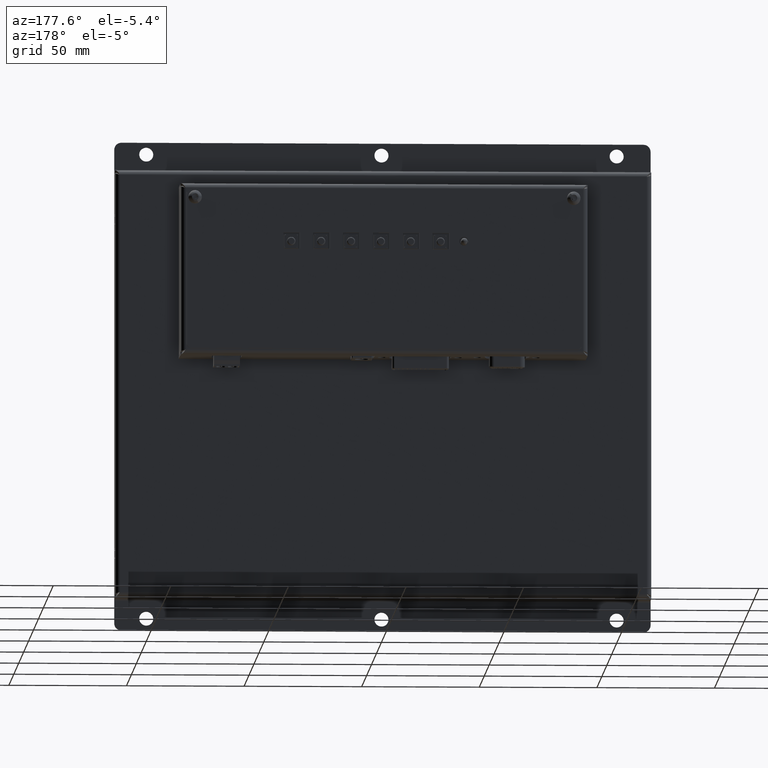
[diagram: clean part render]
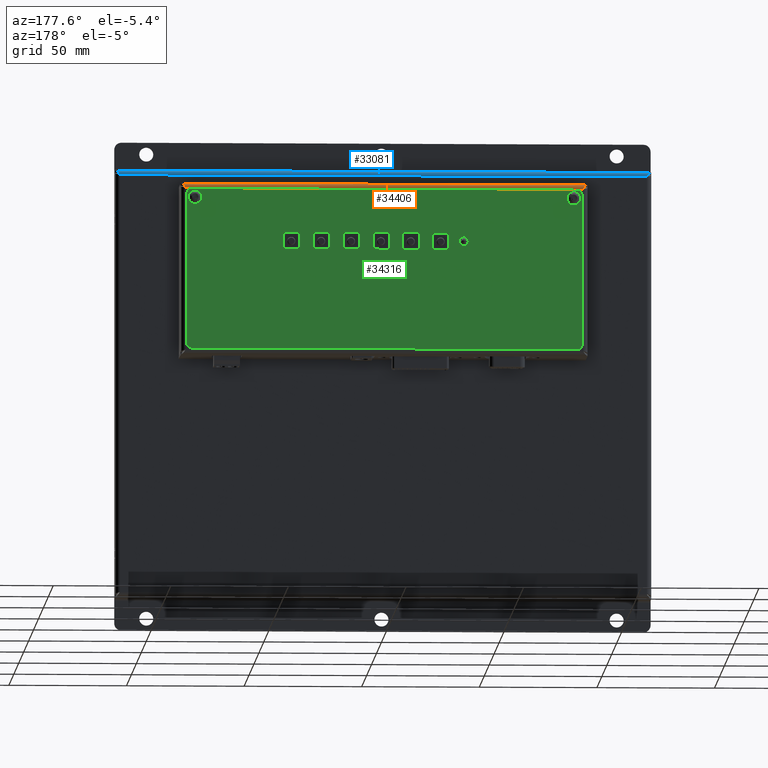
[diagram: same view with three faces highlighted in distinct colors, each labeled with its STEP entity id]
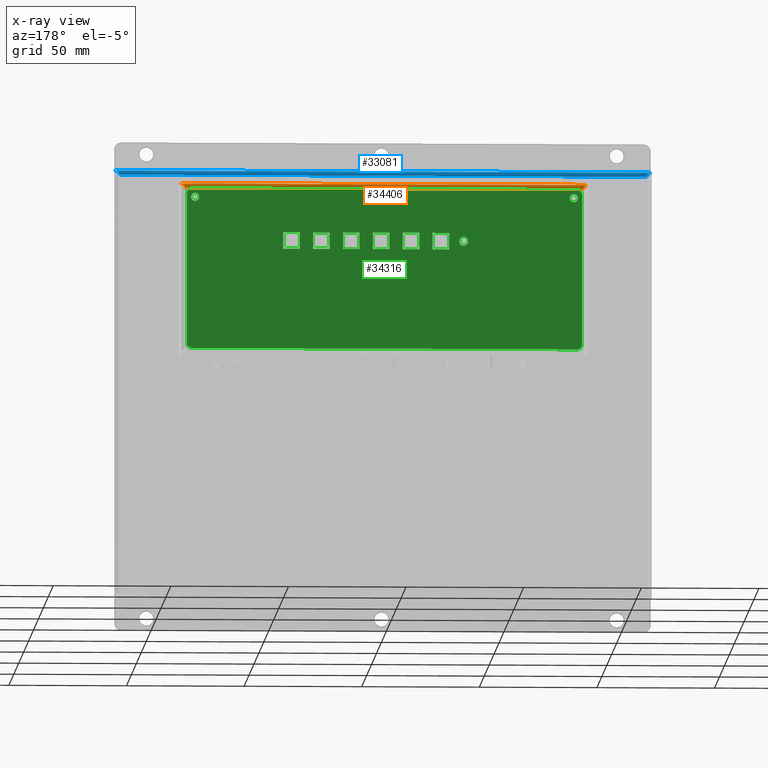
[diagram: x-ray of the same camera — body ghosted, the three highlighted faces saturated]
A machine part, auxiliary view with three faces highlighted in distinct colors.
The next image is the same camera in x-ray (body ghosted, the three faces saturated) — at least one of them is partly hidden behind the body in this view.
Their STEP definitions:

[orange] entity #34406 — the highlighted cylindrical surface (edge-blend (fillet) strip) has radius 2 mm, axis along (1, 0, 0).
#582=B_SPLINE_CURVE_WITH_KNOTS('',3,(#57694,#57695,#57696,#57697,#57698,
#57699,#57700),.UNSPECIFIED.,.F.,.F.,(4,3,4),(-0.999999999999995,-0.571428571428571,
0.),.UNSPECIFIED.);
#599=B_SPLINE_CURVE_WITH_KNOTS('',3,(#58089,#58090,#58091,#58092,#58093,
#58094,#58095),.UNSPECIFIED.,.F.,.F.,(4,3,4),(-1.,-0.57142857142857,0.),
 .UNSPECIFIED.);
#1060=CYLINDRICAL_SURFACE('',#37478,2.);
#4252=FACE_OUTER_BOUND('',#6338,.T.);
#6338=EDGE_LOOP('',(#30309,#30310,#30311,#30312));
#9542=LINE('',#57281,#12763);
#9652=LINE('',#57958,#12873);
#12763=VECTOR('',#45249,10.);
#12873=VECTOR('',#45599,10.);
#16978=VERTEX_POINT('',#57279);
#16979=VERTEX_POINT('',#57280);
#17095=VERTEX_POINT('',#57669);
#17113=VERTEX_POINT('',#57957);
#21397=EDGE_CURVE('',#16978,#16979,#9542,.T.);
#21561=EDGE_CURVE('',#17095,#16979,#582,.T.);
#21589=EDGE_CURVE('',#17095,#17113,#9652,.T.);
#21611=EDGE_CURVE('',#17113,#16978,#599,.T.);
#30309=ORIENTED_EDGE('',*,*,#21589,.F.);
#30310=ORIENTED_EDGE('',*,*,#21561,.T.);
#30311=ORIENTED_EDGE('',*,*,#21397,.F.);
#30312=ORIENTED_EDGE('',*,*,#21611,.F.);
#34406=ADVANCED_FACE('',(#4252),#1060,.T.);
#37478=AXIS2_PLACEMENT_3D('',#58224,#45656,#45657);
#45249=DIRECTION('',(-1.,-2.62774680384652E-16,0.));
#45599=DIRECTION('',(1.,2.86392855063793E-16,4.90481268965552E-32));
#45656=DIRECTION('center_axis',(-1.,-2.59701292309978E-16,0.));
#45657=DIRECTION('ref_axis',(0.,0.,1.));
#57279=CARTESIAN_POINT('',(84.5,34.5,1.38777878078145E-16));
#57280=CARTESIAN_POINT('',(-84.5,34.5,1.38777878078145E-16));
#57281=CARTESIAN_POINT('',(42.25,34.5,0.));
#57669=CARTESIAN_POINT('',(-86.5,36.5,-2.));
#57694=CARTESIAN_POINT('Ctrl Pts',(-86.5,36.5,-1.99999999999997));
#57695=CARTESIAN_POINT('Ctrl Pts',(-86.2142857142844,36.5,-1.55120104948725));
#57696=CARTESIAN_POINT('Ctrl Pts',(-85.9285714285714,36.3433273103291,-1.10157833651869));
#57697=CARTESIAN_POINT('Ctrl Pts',(-85.6428571428577,36.0635085058079,-0.752432041903078));
#57698=CARTESIAN_POINT('Ctrl Pts',(-85.2619047619061,35.6904167664462,-0.286903649082256));
#57699=CARTESIAN_POINT('Ctrl Pts',(-84.8809523809533,35.098398600684,-5.48368807373216E-15));
#57700=CARTESIAN_POINT('Ctrl Pts',(-84.4999999999999,34.5,-2.63677968348475E-15));
#57957=CARTESIAN_POINT('',(86.5,36.5,-2.));
#57958=CARTESIAN_POINT('',(-3.52240423817298E-15,36.5,-1.99999999999999));
#58089=CARTESIAN_POINT('Ctrl Pts',(86.5,36.5,-2.));
#58090=CARTESIAN_POINT('Ctrl Pts',(86.2142857142865,36.5,-1.55120104948719));
#58091=CARTESIAN_POINT('Ctrl Pts',(85.9285714285719,36.3433273103291,-1.10157833651865));
#58092=CARTESIAN_POINT('Ctrl Pts',(85.6428571428569,36.0635085058079,-0.752432041903043));
#58093=CARTESIAN_POINT('Ctrl Pts',(85.2619047619036,35.6904167664462,-0.286903649082242));
#58094=CARTESIAN_POINT('Ctrl Pts',(84.8809523809496,35.0983986006839,-8.64056645784558E-15));
#58095=CARTESIAN_POINT('Ctrl Pts',(84.5000000000001,34.5,-2.22044604925038E-15));
#58224=CARTESIAN_POINT('Origin',(-1.77635683940025E-14,34.5,-2.));

[blue] entity #33081 — the highlighted cylindrical surface (edge-blend (fillet) strip) has radius 2 mm, axis along (1, 0, 0).
#374=B_SPLINE_CURVE_WITH_KNOTS('',3,(#48739,#48740,#48741,#48742,#48743,
#48744,#48745),.UNSPECIFIED.,.F.,.F.,(4,3,4),(-1.,-0.571428571428571,0.),
 .UNSPECIFIED.);
#376=B_SPLINE_CURVE_WITH_KNOTS('',3,(#48825,#48826,#48827,#48828,#48829,
#48830,#48831),.UNSPECIFIED.,.F.,.F.,(4,3,4),(-1.,-0.571428571428568,0.),
 .UNSPECIFIED.);
#752=CYLINDRICAL_SURFACE('',#35533,2.);
#2927=FACE_OUTER_BOUND('',#4836,.T.);
#4836=EDGE_LOOP('',(#23299,#23300,#23301,#23302));
#6947=LINE('',#47934,#10168);
#7061=LINE('',#48322,#10282);
#10168=VECTOR('',#38682,10.);
#10282=VECTOR('',#39110,10.);
#14623=VERTEX_POINT('',#47932);
#14624=VERTEX_POINT('',#47933);
#14740=VERTEX_POINT('',#48319);
#14741=VERTEX_POINT('',#48321);
#17835=EDGE_CURVE('',#14623,#14624,#6947,.T.);
#18028=EDGE_CURVE('',#14740,#14741,#7061,.T.);
#18076=EDGE_CURVE('',#14741,#14623,#374,.T.);
#18084=EDGE_CURVE('',#14740,#14624,#376,.T.);
#23299=ORIENTED_EDGE('',*,*,#18028,.F.);
#23300=ORIENTED_EDGE('',*,*,#18084,.T.);
#23301=ORIENTED_EDGE('',*,*,#17835,.F.);
#23302=ORIENTED_EDGE('',*,*,#18076,.F.);
#33081=ADVANCED_FACE('',(#2927),#752,.T.);
#35533=AXIS2_PLACEMENT_3D('',#48858,#39182,#39183);
#38682=DIRECTION('',(-1.,-1.58603289232165E-16,0.));
#39110=DIRECTION('',(1.,1.56511390164708E-16,6.07145166111088E-33));
#39182=DIRECTION('center_axis',(-1.,-1.57199720300907E-16,0.));
#39183=DIRECTION('ref_axis',(0.,0.,1.));
#47932=CARTESIAN_POINT('',(112.,89.,1.));
#47933=CARTESIAN_POINT('',(-112.,89.,1.));
#47934=CARTESIAN_POINT('',(56.,89.,1.));
#48319=CARTESIAN_POINT('',(-114.,91.,-1.00000000000003));
#48321=CARTESIAN_POINT('',(114.,91.,-0.999999999999992));
#48322=CARTESIAN_POINT('',(1.66115145573123E-14,91.,-1.00000000000001));
#48739=CARTESIAN_POINT('Ctrl Pts',(114.,91.,-0.999999999999991));
#48740=CARTESIAN_POINT('Ctrl Pts',(113.714285714287,91.,-0.55120104948688));
#48741=CARTESIAN_POINT('Ctrl Pts',(113.428571428573,90.8432969450831,-0.101614789424755));
#48742=CARTESIAN_POINT('Ctrl Pts',(113.142857142859,90.5634738026695,0.247526297632729));
#48743=CARTESIAN_POINT('Ctrl Pts',(112.761904761907,90.1903762794514,0.713047747042709));
#48744=CARTESIAN_POINT('Ctrl Pts',(112.380952380954,89.5983986006837,0.999999999999994));
#48745=CARTESIAN_POINT('Ctrl Pts',(112.,89.0000000000001,0.999999999999998));
#48825=CARTESIAN_POINT('Ctrl Pts',(-114.,91.,-1.00000000000003));
#48826=CARTESIAN_POINT('Ctrl Pts',(-113.714285714283,91.,-0.551201049487266));
#48827=CARTESIAN_POINT('Ctrl Pts',(-113.42857142857,90.8432969450831,-0.10161478942499));
#48828=CARTESIAN_POINT('Ctrl Pts',(-113.142857142857,90.5634738026695,0.247526297632587));
#48829=CARTESIAN_POINT('Ctrl Pts',(-112.761904761906,90.1903762794514,0.713047747042682));
#48830=CARTESIAN_POINT('Ctrl Pts',(-112.380952380954,89.5983986006836,0.999999999999983));
#48831=CARTESIAN_POINT('Ctrl Pts',(-112.,89.,0.999999999999998));
#48858=CARTESIAN_POINT('Origin',(1.77635683940025E-14,89.,-1.));

[green] entity #34316 — the highlighted planar face has unit normal (0, 1, -0).
#2637=FACE_BOUND('',#6214,.T.);
#2638=FACE_BOUND('',#6215,.T.);
#2639=FACE_BOUND('',#6216,.T.);
#2640=FACE_BOUND('',#6217,.T.);
#2641=FACE_BOUND('',#6218,.T.);
#2642=FACE_BOUND('',#6219,.T.);
#2643=FACE_BOUND('',#6220,.T.);
#2644=FACE_BOUND('',#6221,.T.);
#2645=FACE_BOUND('',#6222,.T.);
#4162=FACE_OUTER_BOUND('',#6213,.T.);
#6213=EDGE_LOOP('',(#29799,#29800,#29801,#29802,#29803,#29804,#29805,#29806));
#6214=EDGE_LOOP('',(#29807,#29808));
#6215=EDGE_LOOP('',(#29809,#29810));
#6216=EDGE_LOOP('',(#29811,#29812,#29813,#29814));
#6217=EDGE_LOOP('',(#29815,#29816,#29817,#29818));
#6218=EDGE_LOOP('',(#29819,#29820,#29821,#29822));
#6219=EDGE_LOOP('',(#29823,#29824,#29825,#29826));
#6220=EDGE_LOOP('',(#29827,#29828,#29829,#29830));
#6221=EDGE_LOOP('',(#29831,#29832,#29833,#29834));
#6222=EDGE_LOOP('',(#29835));
#9441=LINE('',#57031,#12662);
#9445=LINE('',#57039,#12666);
#9448=LINE('',#57045,#12669);
#9451=LINE('',#57050,#12672);
#9453=LINE('',#57055,#12674);
#9457=LINE('',#57063,#12678);
#9460=LINE('',#57069,#12681);
#9463=LINE('',#57074,#12684);
#9465=LINE('',#57079,#12686);
#9469=LINE('',#57087,#12690);
#9472=LINE('',#57093,#12693);
#9475=LINE('',#57098,#12696);
#9477=LINE('',#57103,#12698);
#9481=LINE('',#57111,#12702);
#9484=LINE('',#57117,#12705);
#9487=LINE('',#57122,#12708);
#9489=LINE('',#57127,#12710);
#9493=LINE('',#57135,#12714);
#9496=LINE('',#57141,#12717);
#9499=LINE('',#57146,#12720);
#9501=LINE('',#57151,#12722);
#9505=LINE('',#57159,#12726);
#9508=LINE('',#57165,#12729);
#9511=LINE('',#57170,#12732);
#9514=LINE('',#57181,#12735);
#9518=LINE('',#57190,#12739);
#9521=LINE('',#57198,#12742);
#9524=LINE('',#57206,#12745);
#12662=VECTOR('',#45014,10.);
#12666=VECTOR('',#45020,10.);
#12669=VECTOR('',#45025,10.);
#12672=VECTOR('',#45030,10.);
#12674=VECTOR('',#45034,10.);
#12678=VECTOR('',#45040,10.);
#12681=VECTOR('',#45045,10.);
#12684=VECTOR('',#45050,10.);
#12686=VECTOR('',#45054,10.);
#12690=VECTOR('',#45060,10.);
#12693=VECTOR('',#45065,10.);
#12696=VECTOR('',#45070,10.);
#12698=VECTOR('',#45074,10.);
#12702=VECTOR('',#45080,10.);
#12705=VECTOR('',#45085,10.);
#12708=VECTOR('',#45090,10.);
#12710=VECTOR('',#45094,10.);
#12714=VECTOR('',#45100,10.);
#12717=VECTOR('',#45105,10.);
#12720=VECTOR('',#45110,10.);
#12722=VECTOR('',#45114,10.);
#12726=VECTOR('',#45120,10.);
#12729=VECTOR('',#45125,10.);
#12732=VECTOR('',#45130,10.);
#12735=VECTOR('',#45141,10.);
#12739=VECTOR('',#45151,10.);
#12742=VECTOR('',#45160,10.);
#12745=VECTOR('',#45169,10.);
#13971=CIRCLE('',#37258,1.7);
#13972=CIRCLE('',#37259,1.7);
#13975=CIRCLE('',#37263,1.7);
#13976=CIRCLE('',#37264,1.7);
#13988=CIRCLE('',#37302,1.9);
#13989=CIRCLE('',#37305,2.);
#13990=CIRCLE('',#37308,2.);
#13991=CIRCLE('',#37311,2.);
#13992=CIRCLE('',#37314,2.);
#16872=VERTEX_POINT('',#56976);
#16873=VERTEX_POINT('',#56977);
#16876=VERTEX_POINT('',#56986);
#16877=VERTEX_POINT('',#56987);
#16896=VERTEX_POINT('',#57029);
#16897=VERTEX_POINT('',#57030);
#16900=VERTEX_POINT('',#57038);
#16902=VERTEX_POINT('',#57044);
#16904=VERTEX_POINT('',#57053);
#16905=VERTEX_POINT('',#57054);
#16908=VERTEX_POINT('',#57062);
#16910=VERTEX_POINT('',#57068);
#16912=VERTEX_POINT('',#57077);
#16913=VERTEX_POINT('',#57078);
#16916=VERTEX_POINT('',#57086);
#16918=VERTEX_POINT('',#57092);
#16920=VERTEX_POINT('',#57101);
#16921=VERTEX_POINT('',#57102);
#16924=VERTEX_POINT('',#57110);
#16926=VERTEX_POINT('',#57116);
#16928=VERTEX_POINT('',#57125);
#16929=VERTEX_POINT('',#57126);
#16932=VERTEX_POINT('',#57134);
#16934=VERTEX_POINT('',#57140);
#16936=VERTEX_POINT('',#57149);
#16937=VERTEX_POINT('',#57150);
#16940=VERTEX_POINT('',#57158);
#16942=VERTEX_POINT('',#57164);
#16945=VERTEX_POINT('',#57175);
#16946=VERTEX_POINT('',#57179);
#16947=VERTEX_POINT('',#57180);
#16948=VERTEX_POINT('',#57185);
#16949=VERTEX_POINT('',#57189);
#16950=VERTEX_POINT('',#57193);
#16951=VERTEX_POINT('',#57197);
#16952=VERTEX_POINT('',#57201);
#16953=VERTEX_POINT('',#57205);
#21248=EDGE_CURVE('',#16872,#16873,#13971,.T.);
#21249=EDGE_CURVE('',#16873,#16872,#13972,.T.);
#21253=EDGE_CURVE('',#16876,#16877,#13975,.T.);
#21254=EDGE_CURVE('',#16877,#16876,#13976,.T.);
#21274=EDGE_CURVE('',#16896,#16897,#9441,.T.);
#21278=EDGE_CURVE('',#16897,#16900,#9445,.T.);
#21281=EDGE_CURVE('',#16900,#16902,#9448,.T.);
#21284=EDGE_CURVE('',#16902,#16896,#9451,.T.);
#21286=EDGE_CURVE('',#16904,#16905,#9453,.T.);
#21290=EDGE_CURVE('',#16905,#16908,#9457,.T.);
#21293=EDGE_CURVE('',#16908,#16910,#9460,.T.);
#21296=EDGE_CURVE('',#16910,#16904,#9463,.T.);
#21298=EDGE_CURVE('',#16912,#16913,#9465,.T.);
#21302=EDGE_CURVE('',#16913,#16916,#9469,.T.);
#21305=EDGE_CURVE('',#16916,#16918,#9472,.T.);
#21308=EDGE_CURVE('',#16918,#16912,#9475,.T.);
#21310=EDGE_CURVE('',#16920,#16921,#9477,.T.);
#21314=EDGE_CURVE('',#16921,#16924,#9481,.T.);
#21317=EDGE_CURVE('',#16924,#16926,#9484,.T.);
#21320=EDGE_CURVE('',#16926,#16920,#9487,.T.);
#21322=EDGE_CURVE('',#16928,#16929,#9489,.T.);
#21326=EDGE_CURVE('',#16929,#16932,#9493,.T.);
#21329=EDGE_CURVE('',#16932,#16934,#9496,.T.);
#21332=EDGE_CURVE('',#16934,#16928,#9499,.T.);
#21334=EDGE_CURVE('',#16936,#16937,#9501,.T.);
#21338=EDGE_CURVE('',#16937,#16940,#9505,.T.);
#21341=EDGE_CURVE('',#16940,#16942,#9508,.T.);
#21344=EDGE_CURVE('',#16942,#16936,#9511,.T.);
#21348=EDGE_CURVE('',#16945,#16945,#13988,.T.);
#21349=EDGE_CURVE('',#16946,#16947,#9514,.T.);
#21352=EDGE_CURVE('',#16947,#16948,#13989,.T.);
#21354=EDGE_CURVE('',#16948,#16949,#9518,.T.);
#21356=EDGE_CURVE('',#16949,#16950,#13990,.T.);
#21358=EDGE_CURVE('',#16950,#16951,#9521,.T.);
#21360=EDGE_CURVE('',#16951,#16952,#13991,.T.);
#21362=EDGE_CURVE('',#16952,#16953,#9524,.T.);
#21364=EDGE_CURVE('',#16953,#16946,#13992,.T.);
#29799=ORIENTED_EDGE('',*,*,#21349,.F.);
#29800=ORIENTED_EDGE('',*,*,#21364,.F.);
#29801=ORIENTED_EDGE('',*,*,#21362,.F.);
#29802=ORIENTED_EDGE('',*,*,#21360,.F.);
#29803=ORIENTED_EDGE('',*,*,#21358,.F.);
#29804=ORIENTED_EDGE('',*,*,#21356,.F.);
#29805=ORIENTED_EDGE('',*,*,#21354,.F.);
#29806=ORIENTED_EDGE('',*,*,#21352,.F.);
#29807=ORIENTED_EDGE('',*,*,#21248,.T.);
#29808=ORIENTED_EDGE('',*,*,#21249,.T.);
#29809=ORIENTED_EDGE('',*,*,#21253,.T.);
#29810=ORIENTED_EDGE('',*,*,#21254,.T.);
#29811=ORIENTED_EDGE('',*,*,#21274,.T.);
#29812=ORIENTED_EDGE('',*,*,#21278,.T.);
#29813=ORIENTED_EDGE('',*,*,#21281,.T.);
#29814=ORIENTED_EDGE('',*,*,#21284,.T.);
#29815=ORIENTED_EDGE('',*,*,#21286,.T.);
#29816=ORIENTED_EDGE('',*,*,#21290,.T.);
#29817=ORIENTED_EDGE('',*,*,#21293,.T.);
#29818=ORIENTED_EDGE('',*,*,#21296,.T.);
#29819=ORIENTED_EDGE('',*,*,#21298,.T.);
#29820=ORIENTED_EDGE('',*,*,#21302,.T.);
#29821=ORIENTED_EDGE('',*,*,#21305,.T.);
#29822=ORIENTED_EDGE('',*,*,#21308,.T.);
#29823=ORIENTED_EDGE('',*,*,#21310,.T.);
#29824=ORIENTED_EDGE('',*,*,#21314,.T.);
#29825=ORIENTED_EDGE('',*,*,#21317,.T.);
#29826=ORIENTED_EDGE('',*,*,#21320,.T.);
#29827=ORIENTED_EDGE('',*,*,#21322,.T.);
#29828=ORIENTED_EDGE('',*,*,#21326,.T.);
#29829=ORIENTED_EDGE('',*,*,#21329,.T.);
#29830=ORIENTED_EDGE('',*,*,#21332,.T.);
#29831=ORIENTED_EDGE('',*,*,#21334,.T.);
#29832=ORIENTED_EDGE('',*,*,#21338,.T.);
#29833=ORIENTED_EDGE('',*,*,#21341,.T.);
#29834=ORIENTED_EDGE('',*,*,#21344,.T.);
#29835=ORIENTED_EDGE('',*,*,#21348,.T.);
#32653=PLANE('',#37315);
#34316=ADVANCED_FACE('',(#4162,#2637,#2638,#2639,#2640,#2641,#2642,#2643,
#2644,#2645),#32653,.T.);
#37258=AXIS2_PLACEMENT_3D('',#56978,#44966,#44967);
#37259=AXIS2_PLACEMENT_3D('',#56979,#44968,#44969);
#37263=AXIS2_PLACEMENT_3D('',#56988,#44977,#44978);
#37264=AXIS2_PLACEMENT_3D('',#56989,#44979,#44980);
#37302=AXIS2_PLACEMENT_3D('',#57177,#45137,#45138);
#37305=AXIS2_PLACEMENT_3D('',#57186,#45146,#45147);
#37308=AXIS2_PLACEMENT_3D('',#57194,#45155,#45156);
#37311=AXIS2_PLACEMENT_3D('',#57202,#45164,#45165);
#37314=AXIS2_PLACEMENT_3D('',#57209,#45173,#45174);
#37315=AXIS2_PLACEMENT_3D('',#57210,#45175,#45176);
#44966=DIRECTION('center_axis',(0.,0.,-1.));
#44967=DIRECTION('ref_axis',(1.,0.,0.));
#44968=DIRECTION('center_axis',(0.,0.,-1.));
#44969=DIRECTION('ref_axis',(1.,0.,0.));
#44977=DIRECTION('center_axis',(0.,0.,-1.));
#44978=DIRECTION('ref_axis',(1.,0.,0.));
#44979=DIRECTION('center_axis',(0.,0.,-1.));
#44980=DIRECTION('ref_axis',(1.,0.,0.));
#45014=DIRECTION('',(-1.,0.,0.));
#45020=DIRECTION('',(0.,1.,0.));
#45025=DIRECTION('',(1.,0.,0.));
#45030=DIRECTION('',(0.,-1.,0.));
#45034=DIRECTION('',(-1.,0.,0.));
#45040=DIRECTION('',(0.,1.,0.));
#45045=DIRECTION('',(1.,0.,0.));
#45050=DIRECTION('',(0.,-1.,0.));
#45054=DIRECTION('',(-1.,0.,0.));
#45060=DIRECTION('',(0.,1.,0.));
#45065=DIRECTION('',(1.,0.,0.));
#45070=DIRECTION('',(0.,-1.,0.));
#45074=DIRECTION('',(-1.,0.,0.));
#45080=DIRECTION('',(0.,1.,0.));
#45085=DIRECTION('',(1.,0.,0.));
#45090=DIRECTION('',(0.,-1.,0.));
#45094=DIRECTION('',(-1.,0.,0.));
#45100=DIRECTION('',(0.,1.,0.));
#45105=DIRECTION('',(1.,0.,0.));
#45110=DIRECTION('',(0.,-1.,0.));
#45114=DIRECTION('',(-1.,0.,0.));
#45120=DIRECTION('',(0.,1.,0.));
#45125=DIRECTION('',(1.,0.,0.));
#45130=DIRECTION('',(0.,-1.,0.));
#45137=DIRECTION('center_axis',(0.,0.,-1.));
#45138=DIRECTION('ref_axis',(-1.,0.,0.));
#45141=DIRECTION('',(-6.23404088381961E-16,1.,0.));
#45146=DIRECTION('center_axis',(0.,0.,-1.));
#45147=DIRECTION('ref_axis',(0.,-1.,0.));
#45151=DIRECTION('',(1.,3.24943324280534E-16,0.));
#45155=DIRECTION('center_axis',(0.,0.,-1.));
#45156=DIRECTION('ref_axis',(-1.,0.,0.));
#45160=DIRECTION('',(0.,-1.,0.));
#45164=DIRECTION('center_axis',(0.,0.,-1.));
#45165=DIRECTION('ref_axis',(0.,1.,0.));
#45169=DIRECTION('',(-1.,-3.24943324280534E-16,0.));
#45173=DIRECTION('center_axis',(0.,0.,-1.));
#45174=DIRECTION('ref_axis',(1.,0.,0.));
#45175=DIRECTION('center_axis',(0.,0.,1.));
#45176=DIRECTION('ref_axis',(1.,0.,0.));
#56976=CARTESIAN_POINT('',(-91.307098,27.22,1.));
#56977=CARTESIAN_POINT('',(-94.707098,27.22,1.));
#56978=CARTESIAN_POINT('Origin',(-93.007098,27.22,1.));
#56979=CARTESIAN_POINT('Origin',(-93.007098,27.22,1.));
#56986=CARTESIAN_POINT('',(69.692902,27.22,1.));
#56987=CARTESIAN_POINT('',(66.292902,27.22,1.));
#56988=CARTESIAN_POINT('Origin',(67.992902,27.22,1.));
#56989=CARTESIAN_POINT('Origin',(67.992902,27.22,1.));
#57029=CARTESIAN_POINT('',(2.292902,5.22,1.));
#57030=CARTESIAN_POINT('',(-4.707098,5.22,1.));
#57031=CARTESIAN_POINT('',(-5.107098,5.22,1.));
#57038=CARTESIAN_POINT('',(-4.707098,12.22,1.));
#57039=CARTESIAN_POINT('',(-4.707098,0.969999999999998,1.));
#57044=CARTESIAN_POINT('',(2.292902,12.22,1.));
#57045=CARTESIAN_POINT('',(-8.607098,12.22,1.));
#57050=CARTESIAN_POINT('',(2.292902,4.47,1.));
#57053=CARTESIAN_POINT('',(-10.407098,5.22,1.));
#57054=CARTESIAN_POINT('',(-17.407098,5.22,1.));
#57055=CARTESIAN_POINT('',(-11.457098,5.22,1.));
#57062=CARTESIAN_POINT('',(-17.407098,12.22,1.));
#57063=CARTESIAN_POINT('',(-17.407098,0.969999999999998,1.));
#57068=CARTESIAN_POINT('',(-10.407098,12.22,1.));
#57069=CARTESIAN_POINT('',(-14.957098,12.22,1.));
#57074=CARTESIAN_POINT('',(-10.407098,4.47,1.));
#57077=CARTESIAN_POINT('',(-23.107098,5.22,1.));
#57078=CARTESIAN_POINT('',(-30.107098,5.22,1.));
#57079=CARTESIAN_POINT('',(-17.807098,5.22,1.));
#57086=CARTESIAN_POINT('',(-30.107098,12.22,1.));
#57087=CARTESIAN_POINT('',(-30.107098,0.969999999999998,1.));
#57092=CARTESIAN_POINT('',(-23.107098,12.22,1.));
#57093=CARTESIAN_POINT('',(-21.307098,12.22,1.));
#57098=CARTESIAN_POINT('',(-23.107098,4.47,1.));
#57101=CARTESIAN_POINT('',(14.992902,5.22,1.));
#57102=CARTESIAN_POINT('',(7.992902,5.22,1.));
#57103=CARTESIAN_POINT('',(1.242902,5.22,1.));
#57110=CARTESIAN_POINT('',(7.992902,12.22,1.));
#57111=CARTESIAN_POINT('',(7.992902,0.969999999999998,1.));
#57116=CARTESIAN_POINT('',(14.992902,12.22,1.));
#57117=CARTESIAN_POINT('',(-2.257098,12.22,1.));
#57122=CARTESIAN_POINT('',(14.992902,4.47,1.));
#57125=CARTESIAN_POINT('',(-48.507098,5.22,1.));
#57126=CARTESIAN_POINT('',(-55.507098,5.22,1.));
#57127=CARTESIAN_POINT('',(-30.507098,5.22,1.));
#57134=CARTESIAN_POINT('',(-55.507098,12.22,1.));
#57135=CARTESIAN_POINT('',(-55.507098,0.969999999999998,1.));
#57140=CARTESIAN_POINT('',(-48.507098,12.22,1.));
#57141=CARTESIAN_POINT('',(-34.007098,12.22,1.));
#57146=CARTESIAN_POINT('',(-48.507098,4.47,1.));
#57149=CARTESIAN_POINT('',(-35.807098,5.22,1.));
#57150=CARTESIAN_POINT('',(-42.807098,5.22,1.));
#57151=CARTESIAN_POINT('',(-24.157098,5.22,1.));
#57158=CARTESIAN_POINT('',(-42.807098,12.22,1.));
#57159=CARTESIAN_POINT('',(-42.807098,0.969999999999998,1.));
#57164=CARTESIAN_POINT('',(-35.807098,12.22,1.));
#57165=CARTESIAN_POINT('',(-27.657098,12.22,1.));
#57170=CARTESIAN_POINT('',(-35.807098,4.47,1.));
#57175=CARTESIAN_POINT('',(23.1,8.72,1.));
#57177=CARTESIAN_POINT('Origin',(21.2,8.72,1.));
#57179=CARTESIAN_POINT('',(-96.507098,-35.28,1.));
#57180=CARTESIAN_POINT('',(-96.507098,28.72,1.));
#57181=CARTESIAN_POINT('',(-96.507098,-28.2689377533845,1.));
#57185=CARTESIAN_POINT('',(-94.507098,30.72,1.));
#57186=CARTESIAN_POINT('Origin',(-94.507098,28.72,1.));
#57189=CARTESIAN_POINT('',(69.492902,30.72,1.));
#57190=CARTESIAN_POINT('',(-94.507098,30.72,1.));
#57193=CARTESIAN_POINT('',(71.492902,28.72,1.));
#57194=CARTESIAN_POINT('Origin',(69.492902,28.72,1.));
#57197=CARTESIAN_POINT('',(71.492902,-35.28,1.));
#57198=CARTESIAN_POINT('',(71.492902,28.72,1.));
#57201=CARTESIAN_POINT('',(69.492902,-37.28,1.));
#57202=CARTESIAN_POINT('Origin',(69.492902,-35.28,1.));
#57205=CARTESIAN_POINT('',(-94.507098,-37.28,1.));
#57206=CARTESIAN_POINT('',(69.492902,-37.28,1.));
#57209=CARTESIAN_POINT('Origin',(-94.507098,-35.28,1.));
#57210=CARTESIAN_POINT('Origin',(-12.507098,-3.28,1.));